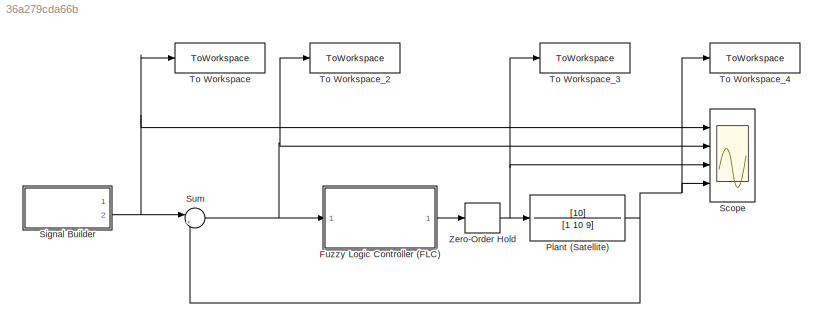
MODEL slx_36a279cda66b
KIND model
CONFIG AbsTol = auto
CONFIG EnableMultiTasking = off
CONFIG FixedStep = auto
CONFIG MaxStep = auto
CONFIG MinStep = auto
CONFIG RelTol = 1e-3
CONFIG SampleTimeConstraint = Unconstrained
CONFIG SolverName = VariableStepAuto
CONFIG StartTime = 0.0
CONFIG StopTime = 16.0
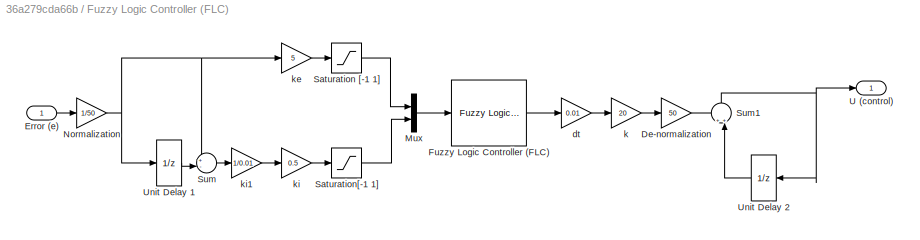
BLOCK [SubSystem] Fuzzy Logic Controller (FLC)
  Ports = [1, 1]
  RequestExecContextInheritance = off
BLOCK [Outport] Fuzzy Logic Controller (FLC)/	U (control)
BLOCK [Gain] Fuzzy Logic Controller (FLC)/De-normalization
  Gain = 50
BLOCK [Inport] Fuzzy Logic Controller (FLC)/Error (e)
BLOCK [Reference] Fuzzy Logic Controller (FLC)/Fuzzy Logic Controller (FLC)  REF=fuzblock/Fuzzy Logic   (lib defined in mdl_858b3b3e7478)
Controller
  Ports = [1, 1]
  SourceBlock = fuzblock/Fuzzy Logic \nController
  SourceProductBaseCode = FL
  SourceType = Fuzzy Inference System
BLOCK [Mux] Fuzzy Logic Controller (FLC)/Mux
  DisplayOption = bar
  Inputs = 2
  Ports = [2, 1]
BLOCK [Gain] Fuzzy Logic Controller (FLC)/Normalization
  Gain = 1/50
BLOCK [Saturate] Fuzzy Logic Controller (FLC)/Saturation [-1 1]
  LowerLimit = -1
  UpperLimit = 1
BLOCK [Saturate] Fuzzy Logic Controller (FLC)/Saturation[-1 1] 
  LowerLimit = -1
  UpperLimit = 1
BLOCK [Sum] Fuzzy Logic Controller (FLC)/Sum
  Inputs = +-|
  Ports = [2, 1]
BLOCK [Sum] Fuzzy Logic Controller (FLC)/Sum1
  Inputs = ++|
  NameLocation = right
  Ports = [2, 1]
BLOCK [UnitDelay] Fuzzy Logic Controller (FLC)/Unit Delay 1
  HasFrameUpgradeWarning = on
  SampleTime = 0.01
BLOCK [UnitDelay] Fuzzy Logic Controller (FLC)/Unit Delay 2
  HasFrameUpgradeWarning = on
  SampleTime = 0.01
BLOCK [Gain] Fuzzy Logic Controller (FLC)/dt
  Gain = 0.01
BLOCK [Gain] Fuzzy Logic Controller (FLC)/k
  Gain = 20
BLOCK [Gain] Fuzzy Logic Controller (FLC)/ke
  Gain = 5
BLOCK [Gain] Fuzzy Logic Controller (FLC)/ki
  Gain = 0.5
BLOCK [Gain] Fuzzy Logic Controller (FLC)/ki1
  Gain = 1/0.01
BLOCK [TransferFcn] Plant (Satellite)
  Denominator = [1 10 9]
  Numerator = [10]
BLOCK [Scope] Scope 
  Floating = off
  NumInputPorts = 4
  Ports = [4]
  ScopeSpecificationString = Simulink.scopes.TimeScopeBlockCfg('CurrentConfiguration', extmgr.ConfigurationSet(extmgr.Configuration('Core','General UI',true),extmgr.Configuration('Core','Source UI',true),extmgr.Configuration('Sources','WiredSimulink',true),extmgr.Configuration('Visuals','Time Domain',true,'SerializedDisplays',{struct('MinYLimReal','-81.33416','MaxYLimReal','149.43964','YLabelReal','','MinYLimMag','0.00000','M...<+1752ch>
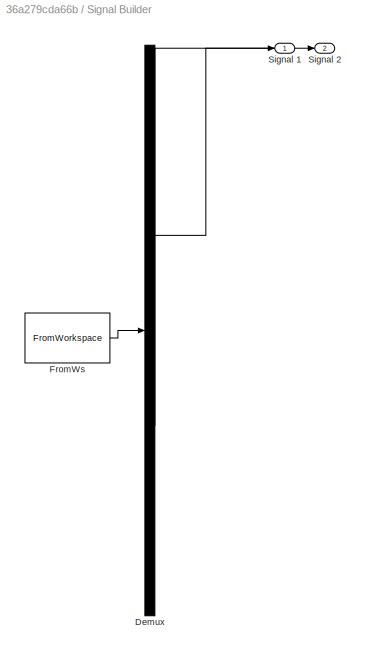
BLOCK [SubSystem] Signal Builder
  ClipboardFcn = sigbuilder_block('clipboard');
  CloseFcn = sigbuilder_block('close');
  ContinueFcn = sigbuilder_block('continue');
  CopyFcn = sigbuilder_block('copy');
  DeleteFcn = sigbuilder_block('delete');
  LoadFcn = sigbuilder_block('load');
  MaskHideContents = on
  ModelCloseFcn = sigbuilder_block('modelClose');
  NameChangeFcn = sigbuilder_block('namechange');
  OpenFcn = sigbuilder_block('open',[434.4 146.4 550.8 400.2 ]);
  PauseFcn = sigbuilder_block('pause');
  Ports = [0, 2]
  PreSaveFcn = sigbuilder_block('preSave');
  RequestExecContextInheritance = off
  StartFcn = sigbuilder_block('start');
  StopFcn = sigbuilder_block('stop');
  Tag = STV Subsys
BLOCK [Demux] Signal Builder/Demux
  DisplayOption = none
  Outputs = 2
  Ports = [1, 2]
  Tag = STV Demux
BLOCK [FromWorkspace] Signal Builder/FromWs
  Tag = STV FromWs
  VariableName = tuvar
BLOCK [Outport] Signal Builder/Signal 1
  Tag = STV Outport
BLOCK [Outport] Signal Builder/Signal 2
  Port = 2
  Tag = STV Outport
BLOCK [Sum] Sum
  Inputs = |+-
  Ports = [2, 1]
BLOCK [ToWorkspace] To Workspace 
  FixptAsFi = on
  MaxDataPoints = inf
  Ports = [1]
  SampleTime = -1
  SaveFormat = Timeseries
  VariableName = r
BLOCK [ToWorkspace] To Workspace_2
  FixptAsFi = on
  MaxDataPoints = inf
  Ports = [1]
  SampleTime = -1
  SaveFormat = Timeseries
  VariableName = e
BLOCK [ToWorkspace] To Workspace_3
  FixptAsFi = on
  MaxDataPoints = inf
  Ports = [1]
  SampleTime = -1
  SaveFormat = Timeseries
  VariableName = u
BLOCK [ToWorkspace] To Workspace_4
  FixptAsFi = on
  MaxDataPoints = inf
  Ports = [1]
  SampleTime = -1
  SaveFormat = Timeseries
  VariableName = y
BLOCK [ZeroOrderHold] Zero-Order Hold
  SampleTime = -1
LINE Fuzzy Logic Controller (FLC)/De-normalization:1 -> Fuzzy Logic Controller (FLC)/Sum1:1
LINE Fuzzy Logic Controller (FLC)/Error (e):1 -> Fuzzy Logic Controller (FLC)/Normalization:1
LINE Fuzzy Logic Controller (FLC)/Fuzzy Logic Controller (FLC):1 -> Fuzzy Logic Controller (FLC)/dt:1
LINE Fuzzy Logic Controller (FLC)/Mux:1 -> Fuzzy Logic Controller (FLC)/Fuzzy Logic Controller (FLC):1
NET Fuzzy Logic Controller (FLC)/Normalization:1 -> Fuzzy Logic Controller (FLC)/Sum:1, Fuzzy Logic Controller (FLC)/Unit Delay 1:1, Fuzzy Logic Controller (FLC)/ke:1
LINE Fuzzy Logic Controller (FLC)/Saturation [-1 1]:1 -> Fuzzy Logic Controller (FLC)/Mux:1
LINE Fuzzy Logic Controller (FLC)/Saturation[-1 1] :1 -> Fuzzy Logic Controller (FLC)/Mux:2
NET Fuzzy Logic Controller (FLC)/Sum1:1 -> Fuzzy Logic Controller (FLC)/	U (control):1, Fuzzy Logic Controller (FLC)/Unit Delay 2:1
LINE Fuzzy Logic Controller (FLC)/Sum:1 -> Fuzzy Logic Controller (FLC)/ki1:1
LINE Fuzzy Logic Controller (FLC)/Unit Delay 1:1 -> Fuzzy Logic Controller (FLC)/Sum:2
LINE Fuzzy Logic Controller (FLC)/Unit Delay 2:1 -> Fuzzy Logic Controller (FLC)/Sum1:2
LINE Fuzzy Logic Controller (FLC)/dt:1 -> Fuzzy Logic Controller (FLC)/k:1
LINE Fuzzy Logic Controller (FLC)/k:1 -> Fuzzy Logic Controller (FLC)/De-normalization:1
LINE Fuzzy Logic Controller (FLC)/ke:1 -> Fuzzy Logic Controller (FLC)/Saturation [-1 1]:1
LINE Fuzzy Logic Controller (FLC)/ki1:1 -> Fuzzy Logic Controller (FLC)/ki:1
LINE Fuzzy Logic Controller (FLC)/ki:1 -> Fuzzy Logic Controller (FLC)/Saturation[-1 1] :1
LINE Fuzzy Logic Controller (FLC):1 -> Zero-Order Hold:1
NET Plant (Satellite):1 -> Scope :4, Sum:2, To Workspace_4:1
NET Signal Builder:2 -> Scope :1, Sum:1, To Workspace :1
NET Sum:1 -> Fuzzy Logic Controller (FLC):1, Scope :2, To Workspace_2:1
NET Zero-Order Hold:1 -> Plant (Satellite):1, Scope :3, To Workspace_3:1
note: NET lines group one-source signal fan-out (src -> all destinations, sorted); 1:1 wires keep LINE
